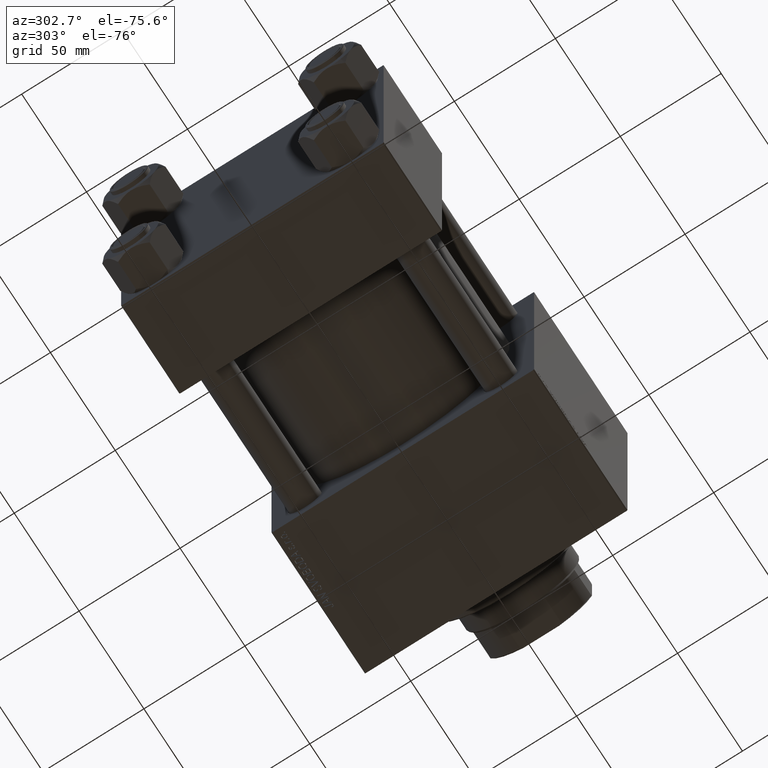
[diagram: clean part render]
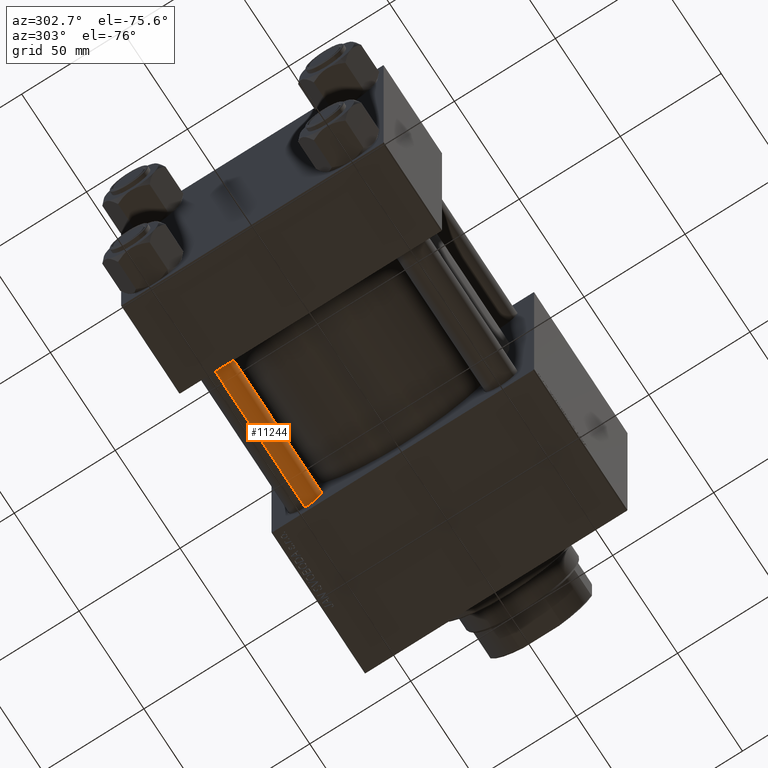
[diagram: same view with one face highlighted and labeled with its STEP entity id]
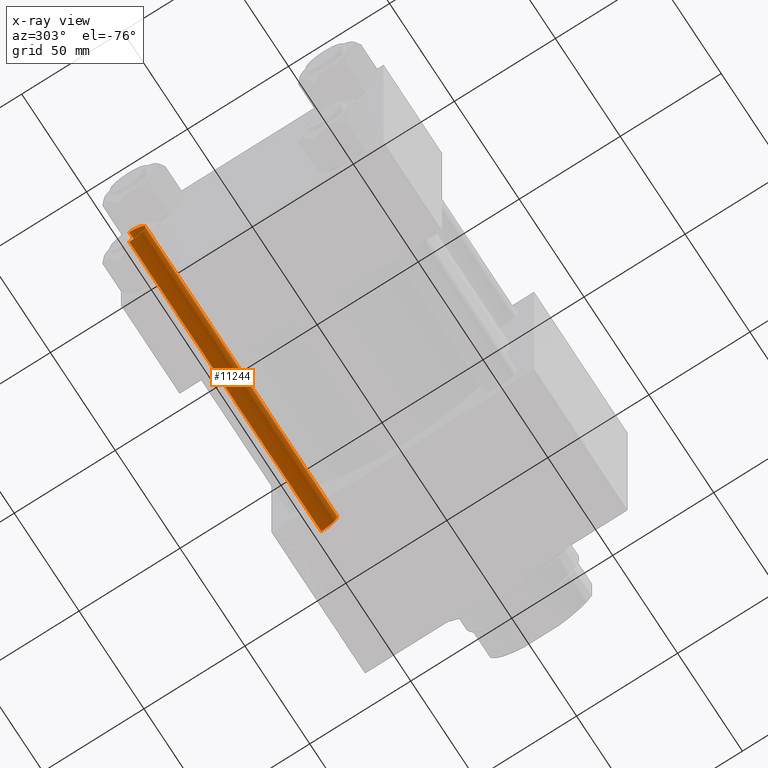
[diagram: x-ray of the same camera — body ghosted, the highlighted face saturated]
A machine part, auxiliary view. The second image highlights one B-rep face of the part: STEP entity #11244.
The next image is the same camera in x-ray: the body ghosted, the highlighted face saturated — about 0% of this face is hidden behind the body in this view.
In plain terms, the highlighted cylindrical surface (edge-blend (fillet) strip) has radius 8 mm, axis along (1, -0, -0).
Its self-contained STEP definition (entity closure, byte-faithful):
#1081 = EDGE_CURVE ( 'NONE', #12725, #43721, #46491, .T. ) ;
#4353 = EDGE_CURVE ( 'NONE', #28999, #33495, #27735, .T. ) ;
#5504 = ORIENTED_EDGE ( 'NONE', *, *, #6315, .F. ) ;
#5587 = DIRECTION ( 'NONE',  ( -0.000000000000000000, -0.000000000000000000, -1.000000000000000000 ) ) ;
#6073 = DIRECTION ( 'NONE',  ( -0.000000000000000000, -0.000000000000000000, -1.000000000000000000 ) ) ;
#6315 = EDGE_CURVE ( 'NONE', #28999, #43721, #29159, .T. ) ;
#6697 = AXIS2_PLACEMENT_3D ( 'NONE', #16666, #5587, #44088 ) ;
#7181 = EDGE_LOOP ( 'NONE', ( #5504, #20789, #13850, #16109 ) ) ;
#7348 = VECTOR ( 'NONE', #6073, 1000.000000000000000 ) ;
#10676 = CARTESIAN_POINT ( 'NONE',  ( -8.000000000000000000, 0.000000000000000000, 149.0000000000000000 ) ) ;
#11244 = ADVANCED_FACE ( 'NONE', ( #47686 ), #13050, .T. ) ;
#12725 = VERTEX_POINT ( 'NONE', #13302 ) ;
#13050 = CYLINDRICAL_SURFACE ( 'NONE', #6697, 8.000000000000000000 ) ;
#13302 = CARTESIAN_POINT ( 'NONE',  ( -8.000000000000000000, 0.000000000000000000, 0.5000000000000281997 ) ) ;
#13850 = ORIENTED_EDGE ( 'NONE', *, *, #29163, .T. ) ;
#14752 = VECTOR ( 'NONE', #14789, 1000.000000000000000 ) ;
#14789 = DIRECTION ( 'NONE',  ( -0.000000000000000000, -0.000000000000000000, -1.000000000000000000 ) ) ;
#16109 = ORIENTED_EDGE ( 'NONE', *, *, #1081, .T. ) ;
#16666 = CARTESIAN_POINT ( 'NONE',  ( 0.000000000000000000, 0.000000000000000000, 149.0000000000000000 ) ) ;
#20789 = ORIENTED_EDGE ( 'NONE', *, *, #4353, .T. ) ;
#24376 = AXIS2_PLACEMENT_3D ( 'NONE', #42287, #38424, #31487 ) ;
#25824 = CARTESIAN_POINT ( 'NONE',  ( 8.000000000000000000, 9.797174393178825657E-16, 149.0000000000000000 ) ) ;
#26112 = CARTESIAN_POINT ( 'NONE',  ( 0.000000000000000000, 0.000000000000000000, 148.5000000000000000 ) ) ;
#27575 = CARTESIAN_POINT ( 'NONE',  ( 8.000000000000000000, 9.797174393178825657E-16, 0.5000000000000281997 ) ) ;
#27735 = CIRCLE ( 'NONE', #44927, 8.000000000000000000 ) ;
#28999 = VERTEX_POINT ( 'NONE', #36087 ) ;
#29159 = LINE ( 'NONE', #25824, #7348 ) ;
#29163 = EDGE_CURVE ( 'NONE', #33495, #12725, #38624, .T. ) ;
#29696 = DIRECTION ( 'NONE',  ( 0.000000000000000000, 0.000000000000000000, -1.000000000000000000 ) ) ;
#31096 = CARTESIAN_POINT ( 'NONE',  ( -8.000000000000000000, 0.000000000000000000, 148.5000000000000000 ) ) ;
#31487 = DIRECTION ( 'NONE',  ( 1.000000000000000000, 0.000000000000000000, 0.000000000000000000 ) ) ;
#33495 = VERTEX_POINT ( 'NONE', #31096 ) ;
#36087 = CARTESIAN_POINT ( 'NONE',  ( 8.000000000000000000, 9.797174393178825657E-16, 148.5000000000000000 ) ) ;
#38424 = DIRECTION ( 'NONE',  ( -0.000000000000000000, -0.000000000000000000, 1.000000000000000000 ) ) ;
#38624 = LINE ( 'NONE', #10676, #14752 ) ;
#41759 = DIRECTION ( 'NONE',  ( 1.000000000000000000, 0.000000000000000000, 0.000000000000000000 ) ) ;
#42287 = CARTESIAN_POINT ( 'NONE',  ( 0.000000000000000000, 0.000000000000000000, 0.5000000000000281997 ) ) ;
#43721 = VERTEX_POINT ( 'NONE', #27575 ) ;
#44088 = DIRECTION ( 'NONE',  ( -1.000000000000000000, 0.000000000000000000, 0.000000000000000000 ) ) ;
#44927 = AXIS2_PLACEMENT_3D ( 'NONE', #26112, #29696, #41759 ) ;
#46491 = CIRCLE ( 'NONE', #24376, 8.000000000000000000 ) ;
#47686 = FACE_OUTER_BOUND ( 'NONE', #7181, .T. ) ;